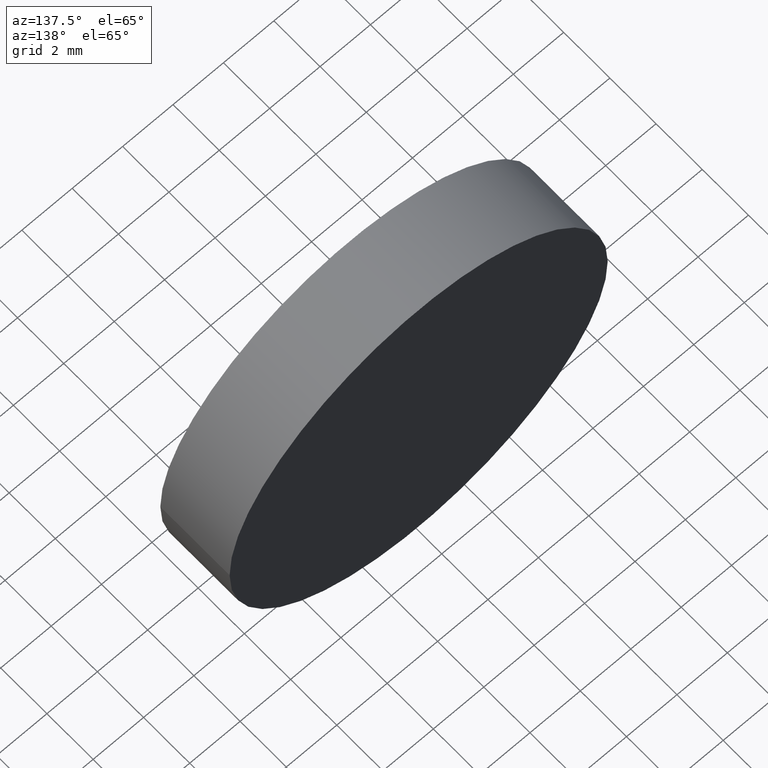
[diagram: clean part render]
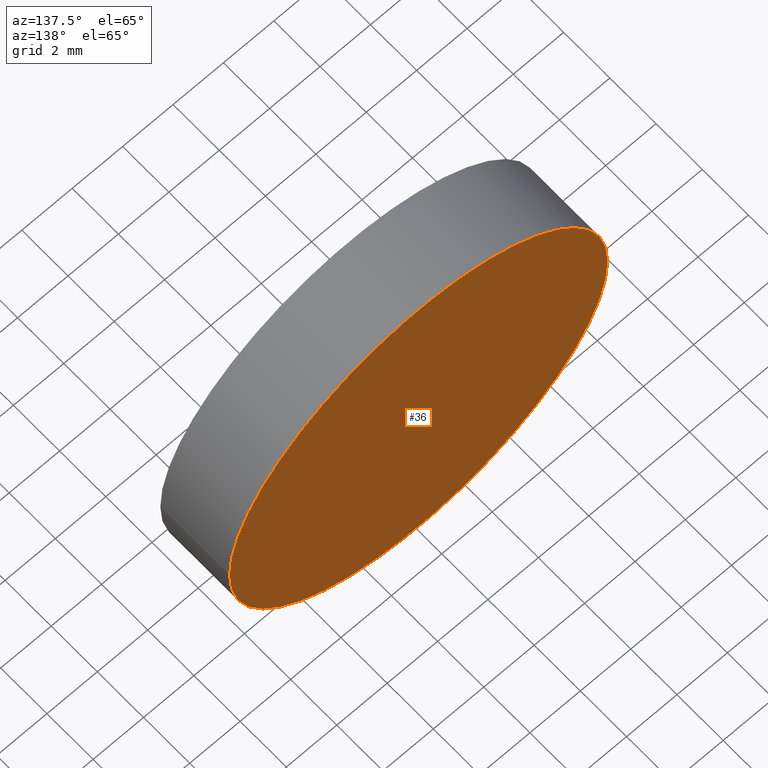
[diagram: same view with one face highlighted and labeled with its STEP entity id]
A machine part, auxiliary view. The second image highlights one B-rep face of the part: STEP entity #36.
In plain terms, the highlighted planar face has unit normal (-0, 1, 0).
Its self-contained STEP definition (entity closure, byte-faithful):
#17=FACE_OUTER_BOUND('',#20,.T.);
#20=EDGE_LOOP('',(#30));
#24=CIRCLE('',#42,7.5);
#26=VERTEX_POINT('',#60);
#28=EDGE_CURVE('',#26,#26,#24,.T.);
#30=ORIENTED_EDGE('',*,*,#28,.F.);
#34=PLANE('',#41);
#36=ADVANCED_FACE('',(#17),#34,.T.);
#41=AXIS2_PLACEMENT_3D('',#59,#48,#49);
#42=AXIS2_PLACEMENT_3D('',#61,#50,#51);
#48=DIRECTION('center_axis',(-1.85037170770859E-16,1.,0.));
#49=DIRECTION('ref_axis',(0.,0.,1.));
#50=DIRECTION('center_axis',(1.85037170770859E-16,-1.,0.));
#51=DIRECTION('ref_axis',(1.,1.85037170770859E-16,0.));
#59=CARTESIAN_POINT('Origin',(7.5,3.,0.));
#60=CARTESIAN_POINT('',(7.5,3.,0.));
#61=CARTESIAN_POINT('Origin',(-5.55111512312578E-16,3.,0.));